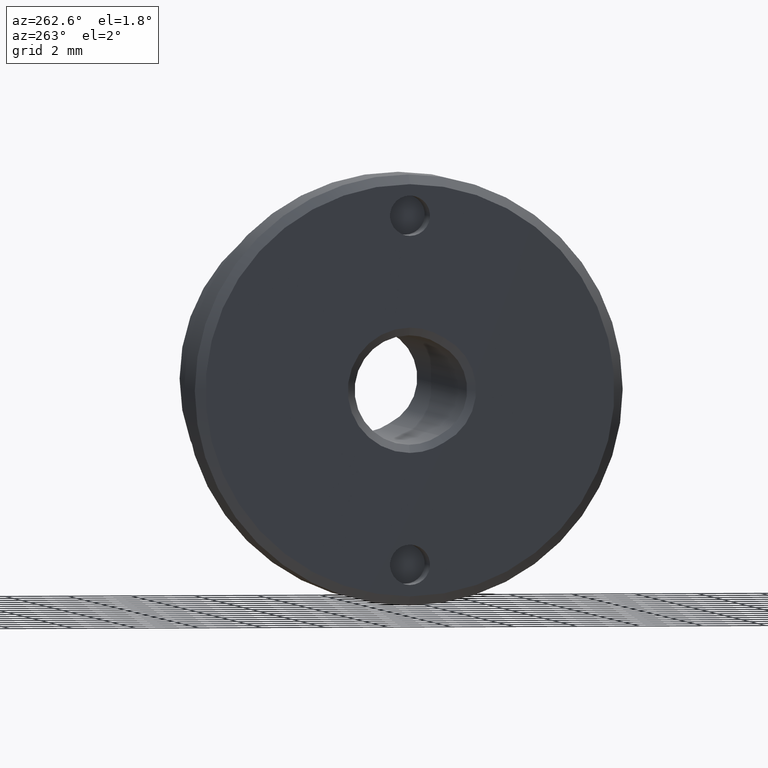
[diagram: clean part render]
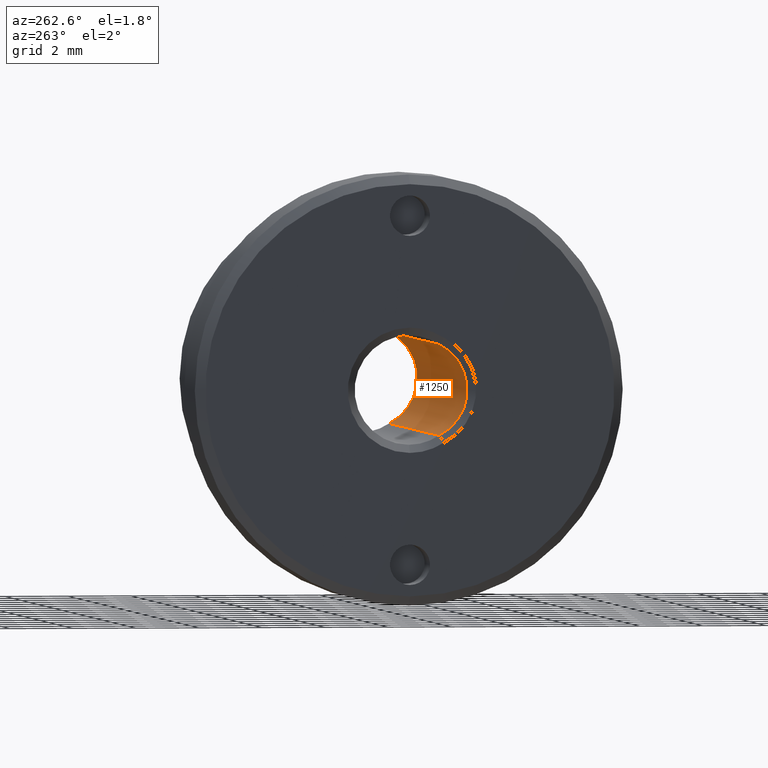
[diagram: same view with one face highlighted and labeled with its STEP entity id]
A machine part, auxiliary view. The second image highlights one B-rep face of the part: STEP entity #1250.
In plain terms, the highlighted cylindrical surface (partial cylindrical patch) has radius 1.6 mm, axis along (-1, -0, -0).
Its self-contained STEP definition (entity closure, byte-faithful):
#20 = ORIENTED_EDGE ( 'NONE', *, *, #277, .F. ) ;
#109 = CARTESIAN_POINT ( 'NONE',  ( 0.2500000000000036637, -0.2500000000000000000, 3.061616997868383018E-17 ) ) ;
#126 = CIRCLE ( 'NONE', #2514, 1.600000000000000089 ) ;
#168 = VECTOR ( 'NONE', #2200, 1000.000000000000000 ) ;
#224 = CARTESIAN_POINT ( 'NONE',  ( 6.349999999999999645, -0.9562500000000004885, 1.435691797531768232 ) ) ;
#258 = DIRECTION ( 'NONE',  ( -1.000000000000000000, -0.000000000000000000, -0.000000000000000000 ) ) ;
#272 = VECTOR ( 'NONE', #258, 1000.000000000000000 ) ;
#277 = EDGE_CURVE ( 'NONE', #2949, #2696, #2140, .T. ) ;
#547 = CARTESIAN_POINT ( 'NONE',  ( 6.349999999999999645, -0.9562500000000009326, -1.435691797531767788 ) ) ;
#706 = VERTEX_POINT ( 'NONE', #1246 ) ;
#919 = AXIS2_PLACEMENT_3D ( 'NONE', #1140, #2103, #2090 ) ;
#1099 = CARTESIAN_POINT ( 'NONE',  ( 12.44999999999999751, -0.2500000000000000000, 3.061616997868383018E-17 ) ) ;
#1113 = CARTESIAN_POINT ( 'NONE',  ( 12.44999999999999751, -0.9562500000000004885, 1.435691797531768232 ) ) ;
#1140 = CARTESIAN_POINT ( 'NONE',  ( 12.69999999999999929, -0.2500000000000000000, 3.061616997868383018E-17 ) ) ;
#1244 = LINE ( 'NONE', #547, #168 ) ;
#1246 = CARTESIAN_POINT ( 'NONE',  ( 12.44999999999999751, -0.9562500000000009326, -1.435691797531767788 ) ) ;
#1250 = ADVANCED_FACE ( 'NONE', ( #1427 ), #2331, .F. ) ;
#1427 = FACE_OUTER_BOUND ( 'NONE', #2899, .T. ) ;
#1453 = EDGE_CURVE ( 'NONE', #3038, #2696, #2951, .T. ) ;
#1490 = ORIENTED_EDGE ( 'NONE', *, *, #2257, .F. ) ;
#1808 = DIRECTION ( 'NONE',  ( 0.000000000000000000, 0.000000000000000000, -1.000000000000000000 ) ) ;
#1826 = DIRECTION ( 'NONE',  ( 1.000000000000000000, -0.000000000000000000, -0.000000000000000000 ) ) ;
#1856 = CARTESIAN_POINT ( 'NONE',  ( 0.2500000000000036637, -0.9562500000000004885, 1.435691797531768232 ) ) ;
#1913 = ORIENTED_EDGE ( 'NONE', *, *, #2527, .T. ) ;
#2090 = DIRECTION ( 'NONE',  ( 0.000000000000000000, 0.000000000000000000, 1.000000000000000000 ) ) ;
#2103 = DIRECTION ( 'NONE',  ( -1.000000000000000000, -0.000000000000000000, -0.000000000000000000 ) ) ;
#2118 = CARTESIAN_POINT ( 'NONE',  ( 0.2500000000000036637, -0.9562500000000009326, -1.435691797531767788 ) ) ;
#2140 = LINE ( 'NONE', #224, #272 ) ;
#2200 = DIRECTION ( 'NONE',  ( 1.000000000000000000, 0.000000000000000000, 0.000000000000000000 ) ) ;
#2257 = EDGE_CURVE ( 'NONE', #3038, #706, #1244, .T. ) ;
#2331 = CYLINDRICAL_SURFACE ( 'NONE', #919, 1.600000000000000089 ) ;
#2485 = DIRECTION ( 'NONE',  ( -1.000000000000000000, 0.000000000000000000, 0.000000000000000000 ) ) ;
#2514 = AXIS2_PLACEMENT_3D ( 'NONE', #1099, #1826, #2758 ) ;
#2527 = EDGE_CURVE ( 'NONE', #2949, #706, #126, .T. ) ;
#2696 = VERTEX_POINT ( 'NONE', #1856 ) ;
#2758 = DIRECTION ( 'NONE',  ( 0.000000000000000000, 0.000000000000000000, -1.000000000000000000 ) ) ;
#2777 = ORIENTED_EDGE ( 'NONE', *, *, #1453, .T. ) ;
#2899 = EDGE_LOOP ( 'NONE', ( #1490, #2777, #20, #1913 ) ) ;
#2949 = VERTEX_POINT ( 'NONE', #1113 ) ;
#2951 = CIRCLE ( 'NONE', #3035, 1.600000000000000089 ) ;
#3035 = AXIS2_PLACEMENT_3D ( 'NONE', #109, #2485, #1808 ) ;
#3038 = VERTEX_POINT ( 'NONE', #2118 ) ;